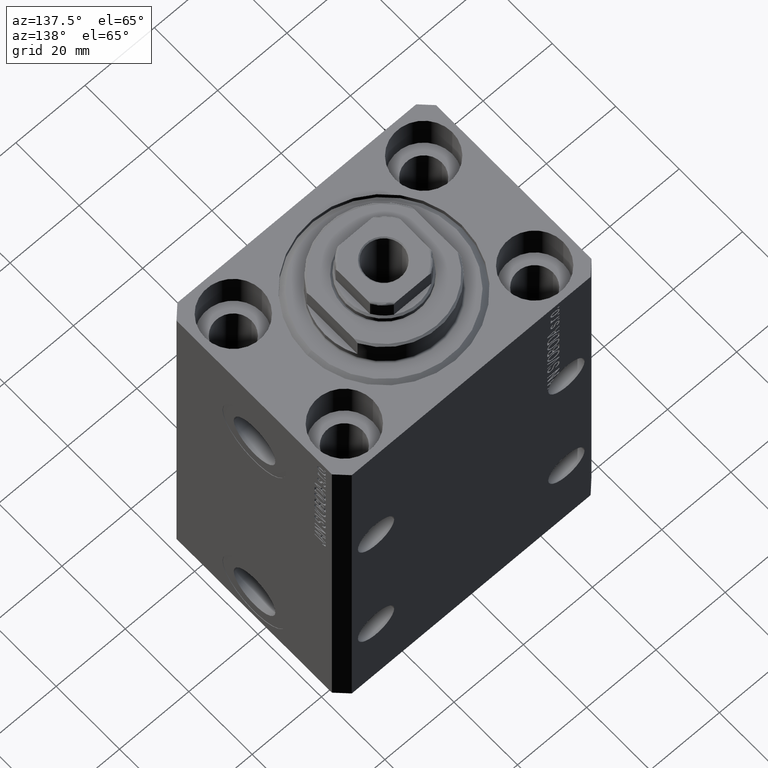
[diagram: clean part render]
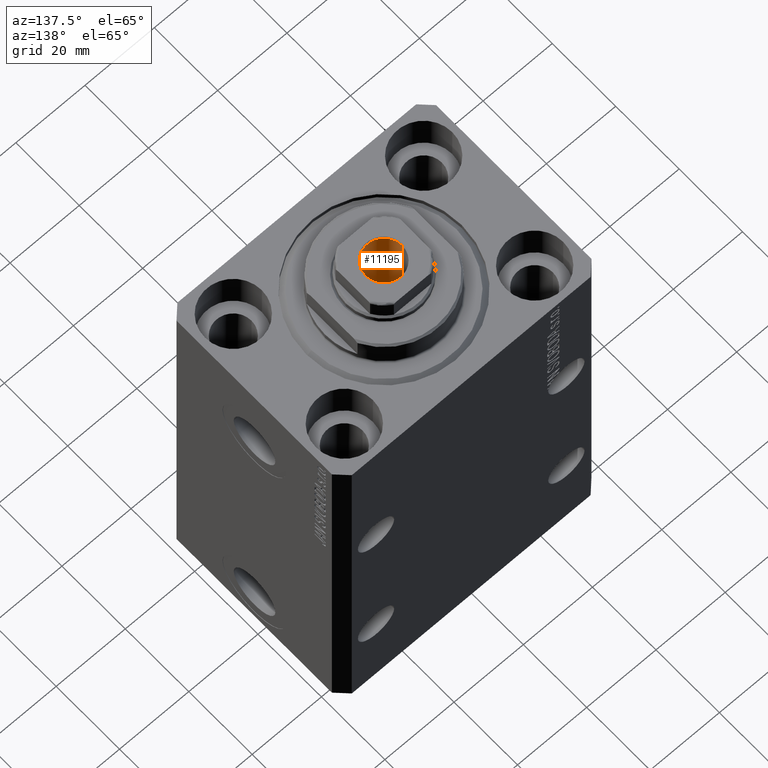
[diagram: same view with one face highlighted and labeled with its STEP entity id]
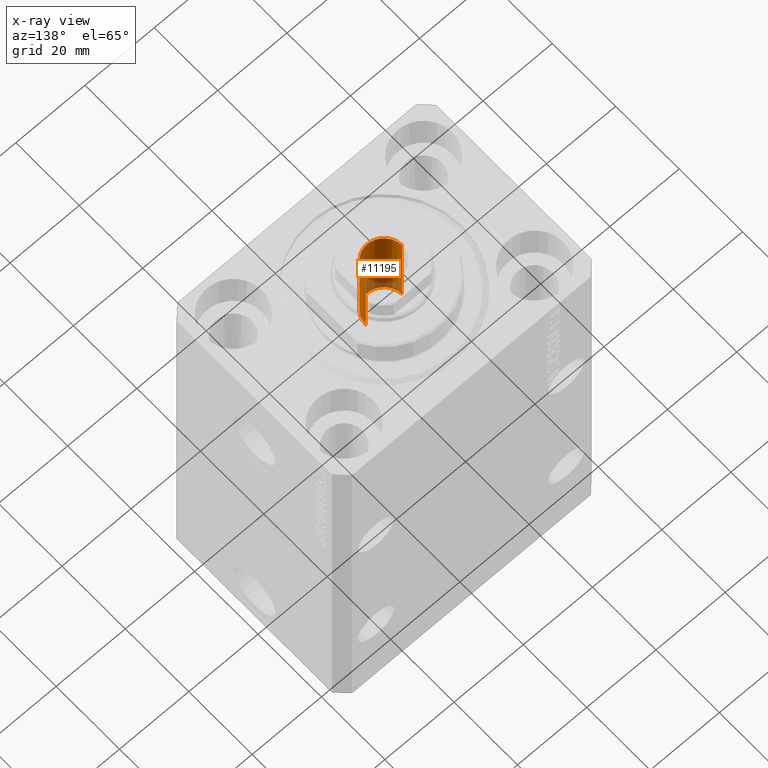
[diagram: x-ray of the same camera — body ghosted, the highlighted face saturated]
A machine part, auxiliary view. The second image highlights one B-rep face of the part: STEP entity #11195.
The next image is the same camera in x-ray: the body ghosted, the highlighted face saturated — about 15% of this face is hidden behind the body in this view.
In plain terms, the highlighted cylindrical surface (edge-blend (fillet) strip) has radius 5.25 mm, axis along (0, 0, 1).
Its self-contained STEP definition (entity closure, byte-faithful):
#3247 = CIRCLE ( 'NONE', #11928, 5.249999999999994671 ) ;
#4032 = CARTESIAN_POINT ( 'NONE',  ( 0.000000000000000000, 0.000000000000000000, 115.1000000000000085 ) ) ;
#4187 = CARTESIAN_POINT ( 'NONE',  ( 0.000000000000000000, 0.000000000000000000, 90.10000000000000853 ) ) ;
#4935 = CARTESIAN_POINT ( 'NONE',  ( 5.249999999999994671, 0.000000000000000000, 90.10000000000000853 ) ) ;
#5282 = EDGE_CURVE ( 'NONE', #30180, #33513, #9396, .T. ) ;
#5293 = AXIS2_PLACEMENT_3D ( 'NONE', #4032, #7201, #7866 ) ;
#5309 = CIRCLE ( 'NONE', #23303, 5.249999999999995559 ) ;
#5767 = VERTEX_POINT ( 'NONE', #25313 ) ;
#5779 = CARTESIAN_POINT ( 'NONE',  ( -5.249999999999995559, 6.429395695523600208E-16, 114.8000000000000114 ) ) ;
#7201 = DIRECTION ( 'NONE',  ( -0.000000000000000000, -0.000000000000000000, 1.000000000000000000 ) ) ;
#7866 = DIRECTION ( 'NONE',  ( 1.000000000000000000, 0.000000000000000000, 0.000000000000000000 ) ) ;
#9396 = LINE ( 'NONE', #23144, #23133 ) ;
#11195 = ADVANCED_FACE ( 'NONE', ( #28376 ), #21403, .F. ) ;
#11928 = AXIS2_PLACEMENT_3D ( 'NONE', #4187, #17273, #34649 ) ;
#12091 = DIRECTION ( 'NONE',  ( 0.000000000000000000, 0.000000000000000000, 1.000000000000000000 ) ) ;
#14787 = CARTESIAN_POINT ( 'NONE',  ( 0.000000000000000000, 0.000000000000000000, 114.8000000000000114 ) ) ;
#16592 = DIRECTION ( 'NONE',  ( -0.000000000000000000, -0.000000000000000000, 1.000000000000000000 ) ) ;
#16606 = EDGE_LOOP ( 'NONE', ( #25038, #25496, #24328, #34016 ) ) ;
#17273 = DIRECTION ( 'NONE',  ( -0.000000000000000000, -0.000000000000000000, 1.000000000000000000 ) ) ;
#18873 = EDGE_CURVE ( 'NONE', #5767, #30180, #3247, .T. ) ;
#21403 = CYLINDRICAL_SURFACE ( 'NONE', #5293, 5.249999999999995559 ) ;
#23133 = VECTOR ( 'NONE', #16592, 1000.000000000000000 ) ;
#23144 = CARTESIAN_POINT ( 'NONE',  ( 5.249999999999995559, 0.000000000000000000, 115.1000000000000085 ) ) ;
#23303 = AXIS2_PLACEMENT_3D ( 'NONE', #14787, #12091, #39602 ) ;
#23369 = EDGE_CURVE ( 'NONE', #5767, #35257, #28831, .T. ) ;
#24328 = ORIENTED_EDGE ( 'NONE', *, *, #28508, .T. ) ;
#25038 = ORIENTED_EDGE ( 'NONE', *, *, #18873, .F. ) ;
#25142 = VECTOR ( 'NONE', #43290, 1000.000000000000000 ) ;
#25313 = CARTESIAN_POINT ( 'NONE',  ( -5.249999999999994671, 6.429395695523597250E-16, 90.10000000000000853 ) ) ;
#25496 = ORIENTED_EDGE ( 'NONE', *, *, #23369, .T. ) ;
#28376 = FACE_OUTER_BOUND ( 'NONE', #16606, .T. ) ;
#28508 = EDGE_CURVE ( 'NONE', #35257, #33513, #5309, .T. ) ;
#28831 = LINE ( 'NONE', #39212, #25142 ) ;
#30180 = VERTEX_POINT ( 'NONE', #4935 ) ;
#33513 = VERTEX_POINT ( 'NONE', #39096 ) ;
#34016 = ORIENTED_EDGE ( 'NONE', *, *, #5282, .F. ) ;
#34649 = DIRECTION ( 'NONE',  ( 1.000000000000000000, 0.000000000000000000, 0.000000000000000000 ) ) ;
#35257 = VERTEX_POINT ( 'NONE', #5779 ) ;
#39096 = CARTESIAN_POINT ( 'NONE',  ( 5.249999999999995559, 0.000000000000000000, 114.8000000000000114 ) ) ;
#39212 = CARTESIAN_POINT ( 'NONE',  ( -5.249999999999995559, 6.429395695523600208E-16, 115.1000000000000085 ) ) ;
#39602 = DIRECTION ( 'NONE',  ( 1.000000000000000000, 0.000000000000000000, 0.000000000000000000 ) ) ;
#43290 = DIRECTION ( 'NONE',  ( -0.000000000000000000, -0.000000000000000000, 1.000000000000000000 ) ) ;